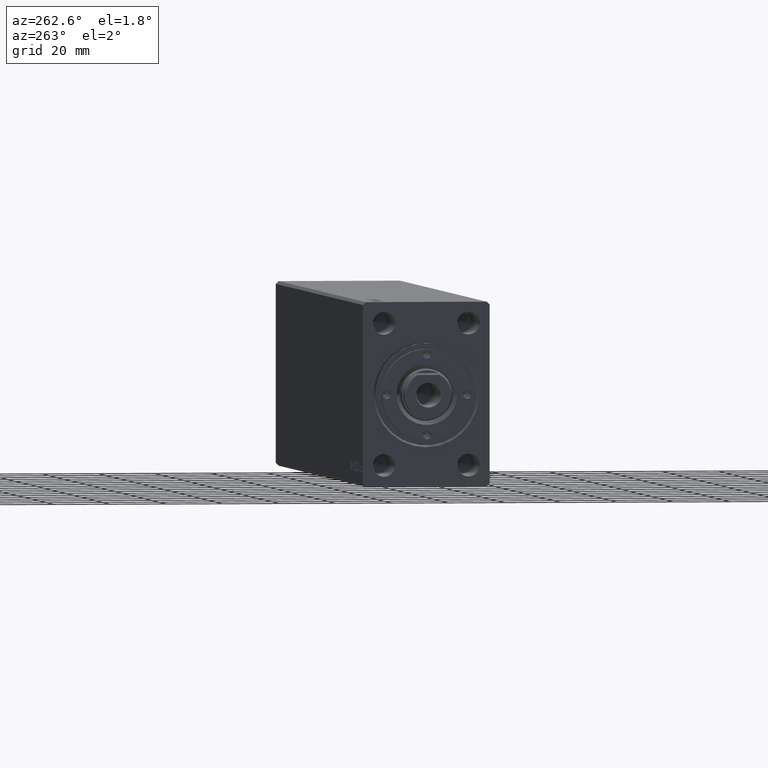
[diagram: clean part render]
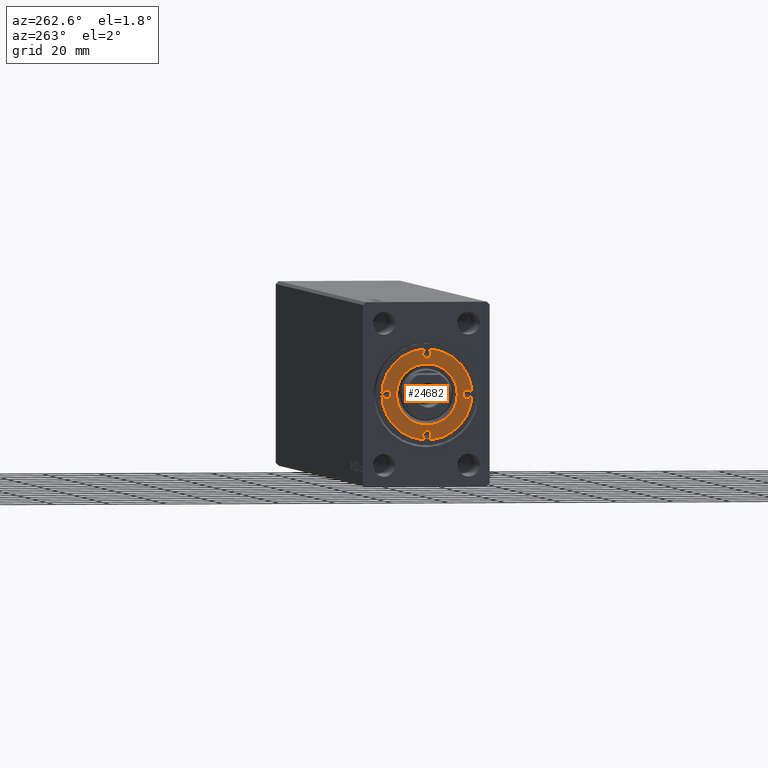
[diagram: same view with one face highlighted and labeled with its STEP entity id]
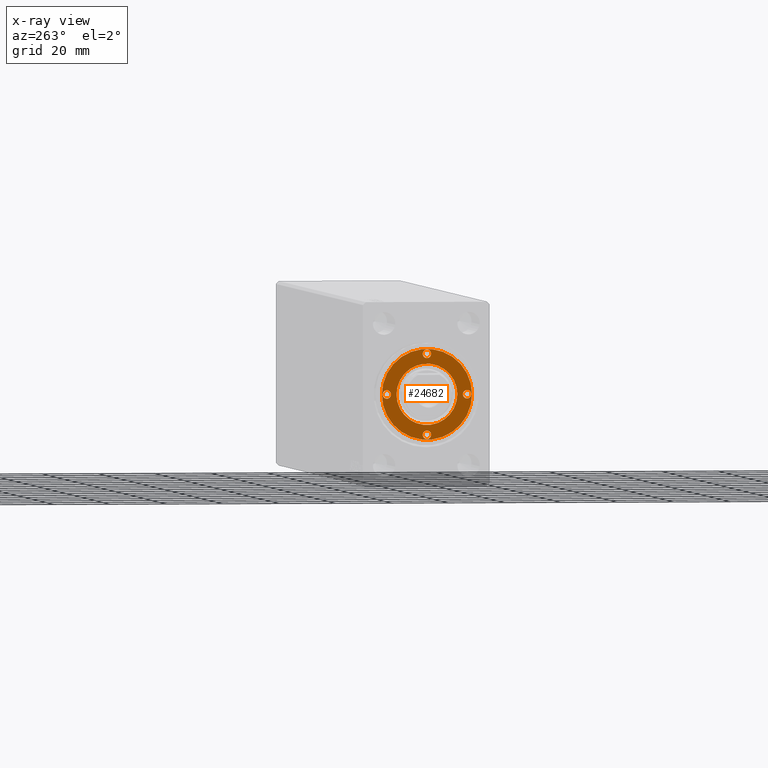
[diagram: x-ray of the same camera — body ghosted, the highlighted face saturated]
A machine part, auxiliary view. The second image highlights one B-rep face of the part: STEP entity #24682.
The next image is the same camera in x-ray: the body ghosted, the highlighted face saturated — about 0% of this face is hidden behind the body in this view.
In plain terms, the highlighted planar face has unit normal (-1, 0, 0).
Its self-contained STEP definition (entity closure, byte-faithful):
#11 = CARTESIAN_POINT ( 'NONE',  ( 0.000000000000000000, 0.000000000000000000, 6.999999999999999112 ) ) ;
#176 = CARTESIAN_POINT ( 'NONE',  ( 1.499999999999996891, 14.25000000000000000, 6.999999999999999112 ) ) ;
#625 = VERTEX_POINT ( 'NONE', #16929 ) ;
#970 = FACE_OUTER_BOUND ( 'NONE', #3366, .T. ) ;
#1006 = CIRCLE ( 'NONE', #25926, 1.499999999999996891 ) ;
#1419 = EDGE_CURVE ( 'NONE', #42107, #10868, #14069, .T. ) ;
#2181 = DIRECTION ( 'NONE',  ( 1.000000000000000000, 0.000000000000000000, 0.000000000000000000 ) ) ;
#2452 = CARTESIAN_POINT ( 'NONE',  ( 0.000000000000000000, 0.000000000000000000, 6.999999999999999112 ) ) ;
#2541 = DIRECTION ( 'NONE',  ( 1.000000000000000000, 0.000000000000000000, 0.000000000000000000 ) ) ;
#2683 = DIRECTION ( 'NONE',  ( 1.000000000000000000, 0.000000000000000000, 0.000000000000000000 ) ) ;
#3366 = EDGE_LOOP ( 'NONE', ( #33672, #27977 ) ) ;
#3828 = DIRECTION ( 'NONE',  ( -0.000000000000000000, -0.000000000000000000, 1.000000000000000000 ) ) ;
#3881 = FACE_BOUND ( 'NONE', #5587, .T. ) ;
#4328 = ORIENTED_EDGE ( 'NONE', *, *, #20865, .F. ) ;
#5408 = DIRECTION ( 'NONE',  ( -0.000000000000000000, -0.000000000000000000, -1.000000000000000000 ) ) ;
#5499 = EDGE_LOOP ( 'NONE', ( #12240, #13201 ) ) ;
#5548 = CIRCLE ( 'NONE', #30478, 1.499999999999996225 ) ;
#5578 = EDGE_CURVE ( 'NONE', #21391, #22571, #40445, .T. ) ;
#5587 = EDGE_LOOP ( 'NONE', ( #31191, #10214 ) ) ;
#5781 = VERTEX_POINT ( 'NONE', #41196 ) ;
#6196 = EDGE_CURVE ( 'NONE', #23084, #34261, #5548, .T. ) ;
#6255 = DIRECTION ( 'NONE',  ( 1.000000000000000000, 0.000000000000000000, 0.000000000000000000 ) ) ;
#6502 = CIRCLE ( 'NONE', #12156, 1.499999999999996891 ) ;
#9080 = VERTEX_POINT ( 'NONE', #176 ) ;
#9116 = CARTESIAN_POINT ( 'NONE',  ( 12.75000000000000355, 1.836970198721025004E-16, 6.999999999999999112 ) ) ;
#10044 = VERTEX_POINT ( 'NONE', #24268 ) ;
#10214 = ORIENTED_EDGE ( 'NONE', *, *, #15070, .F. ) ;
#10498 = CARTESIAN_POINT ( 'NONE',  ( 14.25000000000000000, 0.000000000000000000, 6.999999999999999112 ) ) ;
#10868 = VERTEX_POINT ( 'NONE', #31646 ) ;
#11009 = CARTESIAN_POINT ( 'NONE',  ( 16.00000000000000000, 1.959434878635765131E-15, 6.999999999999999112 ) ) ;
#11975 = AXIS2_PLACEMENT_3D ( 'NONE', #21442, #35063, #18321 ) ;
#12156 = AXIS2_PLACEMENT_3D ( 'NONE', #33246, #40384, #2683 ) ;
#12240 = ORIENTED_EDGE ( 'NONE', *, *, #41867, .T. ) ;
#12704 = DIRECTION ( 'NONE',  ( -0.000000000000000000, -0.000000000000000000, 1.000000000000000000 ) ) ;
#12854 = CARTESIAN_POINT ( 'NONE',  ( -16.00000000000000000, 0.000000000000000000, 6.999999999999999112 ) ) ;
#13035 = ORIENTED_EDGE ( 'NONE', *, *, #5578, .F. ) ;
#13201 = ORIENTED_EDGE ( 'NONE', *, *, #41483, .T. ) ;
#13621 = DIRECTION ( 'NONE',  ( 1.000000000000000000, 0.000000000000000000, 0.000000000000000000 ) ) ;
#14069 = CIRCLE ( 'NONE', #41866, 1.499999999999996225 ) ;
#14945 = ORIENTED_EDGE ( 'NONE', *, *, #6196, .F. ) ;
#15070 = EDGE_CURVE ( 'NONE', #5781, #9080, #22164, .T. ) ;
#15182 = EDGE_CURVE ( 'NONE', #9080, #5781, #6502, .T. ) ;
#15346 = DIRECTION ( 'NONE',  ( -0.000000000000000000, -0.000000000000000000, 1.000000000000000000 ) ) ;
#15613 = CARTESIAN_POINT ( 'NONE',  ( -12.75000000000000355, 0.000000000000000000, 6.999999999999999112 ) ) ;
#16929 = CARTESIAN_POINT ( 'NONE',  ( 10.79999999999997584, 0.000000000000000000, 6.999999999999999112 ) ) ;
#17501 = AXIS2_PLACEMENT_3D ( 'NONE', #36433, #19472, #33083 ) ;
#17812 = CARTESIAN_POINT ( 'NONE',  ( 0.000000000000000000, -14.25000000000000000, 6.999999999999999112 ) ) ;
#18321 = DIRECTION ( 'NONE',  ( 1.000000000000000000, 0.000000000000000000, 0.000000000000000000 ) ) ;
#18827 = VERTEX_POINT ( 'NONE', #11009 ) ;
#19252 = CIRCLE ( 'NONE', #34928, 10.79999999999997584 ) ;
#19472 = DIRECTION ( 'NONE',  ( -0.000000000000000000, -0.000000000000000000, 1.000000000000000000 ) ) ;
#19633 = CARTESIAN_POINT ( 'NONE',  ( 0.000000000000000000, 14.25000000000000000, 6.999999999999999112 ) ) ;
#20084 = PLANE ( 'NONE',  #23820 ) ;
#20865 = EDGE_CURVE ( 'NONE', #22571, #21391, #1006, .T. ) ;
#21259 = FACE_BOUND ( 'NONE', #32080, .T. ) ;
#21382 = CIRCLE ( 'NONE', #42070, 10.79999999999997584 ) ;
#21391 = VERTEX_POINT ( 'NONE', #40196 ) ;
#21442 = CARTESIAN_POINT ( 'NONE',  ( -14.25000000000000000, 0.000000000000000000, 6.999999999999999112 ) ) ;
#21862 = AXIS2_PLACEMENT_3D ( 'NONE', #2452, #43284, #42638 ) ;
#21929 = VERTEX_POINT ( 'NONE', #12854 ) ;
#22164 = CIRCLE ( 'NONE', #30706, 1.499999999999996891 ) ;
#22571 = VERTEX_POINT ( 'NONE', #43420 ) ;
#22782 = DIRECTION ( 'NONE',  ( 1.000000000000000000, 0.000000000000000000, 0.000000000000000000 ) ) ;
#22831 = DIRECTION ( 'NONE',  ( -0.000000000000000000, -0.000000000000000000, -1.000000000000000000 ) ) ;
#23084 = VERTEX_POINT ( 'NONE', #9116 ) ;
#23820 = AXIS2_PLACEMENT_3D ( 'NONE', #11, #37259, #30575 ) ;
#24268 = CARTESIAN_POINT ( 'NONE',  ( -10.79999999999997584, 1.322618543079138535E-15, 6.999999999999999112 ) ) ;
#24386 = FACE_BOUND ( 'NONE', #30092, .T. ) ;
#24682 = ADVANCED_FACE ( 'NONE', ( #21259, #3881, #31542, #24386, #38007, #970 ), #20084, .T. ) ;
#24726 = CIRCLE ( 'NONE', #21862, 16.00000000000000000 ) ;
#25429 = AXIS2_PLACEMENT_3D ( 'NONE', #34613, #31936, #31714 ) ;
#25926 = AXIS2_PLACEMENT_3D ( 'NONE', #17812, #37668, #41902 ) ;
#26781 = ORIENTED_EDGE ( 'NONE', *, *, #36233, .F. ) ;
#27672 = EDGE_LOOP ( 'NONE', ( #30839, #14945 ) ) ;
#27977 = ORIENTED_EDGE ( 'NONE', *, *, #33339, .T. ) ;
#28359 = CIRCLE ( 'NONE', #11975, 1.499999999999996225 ) ;
#29194 = EDGE_CURVE ( 'NONE', #34261, #23084, #41743, .T. ) ;
#29615 = CARTESIAN_POINT ( 'NONE',  ( 0.000000000000000000, -14.25000000000000000, 6.999999999999999112 ) ) ;
#29633 = CARTESIAN_POINT ( 'NONE',  ( -14.25000000000000000, 0.000000000000000000, 6.999999999999999112 ) ) ;
#29856 = DIRECTION ( 'NONE',  ( 1.000000000000000000, 0.000000000000000000, 0.000000000000000000 ) ) ;
#30092 = EDGE_LOOP ( 'NONE', ( #13035, #4328 ) ) ;
#30216 = ORIENTED_EDGE ( 'NONE', *, *, #1419, .F. ) ;
#30478 = AXIS2_PLACEMENT_3D ( 'NONE', #10498, #3828, #13621 ) ;
#30575 = DIRECTION ( 'NONE',  ( 1.000000000000000000, 0.000000000000000000, -0.000000000000000000 ) ) ;
#30706 = AXIS2_PLACEMENT_3D ( 'NONE', #19633, #12704, #6255 ) ;
#30839 = ORIENTED_EDGE ( 'NONE', *, *, #29194, .F. ) ;
#31191 = ORIENTED_EDGE ( 'NONE', *, *, #15182, .F. ) ;
#31542 = FACE_BOUND ( 'NONE', #27672, .T. ) ;
#31646 = CARTESIAN_POINT ( 'NONE',  ( -15.74999999999999645, 1.836970198721025004E-16, 6.999999999999999112 ) ) ;
#31714 = DIRECTION ( 'NONE',  ( 1.000000000000000000, 0.000000000000000000, 0.000000000000000000 ) ) ;
#31936 = DIRECTION ( 'NONE',  ( 0.000000000000000000, 0.000000000000000000, 1.000000000000000000 ) ) ;
#32080 = EDGE_LOOP ( 'NONE', ( #30216, #26781 ) ) ;
#32852 = CARTESIAN_POINT ( 'NONE',  ( 0.000000000000000000, 0.000000000000000000, 6.999999999999999112 ) ) ;
#33083 = DIRECTION ( 'NONE',  ( 1.000000000000000000, 0.000000000000000000, 0.000000000000000000 ) ) ;
#33105 = EDGE_CURVE ( 'NONE', #21929, #18827, #38273, .T. ) ;
#33246 = CARTESIAN_POINT ( 'NONE',  ( 0.000000000000000000, 14.25000000000000000, 6.999999999999999112 ) ) ;
#33339 = EDGE_CURVE ( 'NONE', #18827, #21929, #24726, .T. ) ;
#33672 = ORIENTED_EDGE ( 'NONE', *, *, #33105, .T. ) ;
#34261 = VERTEX_POINT ( 'NONE', #38941 ) ;
#34613 = CARTESIAN_POINT ( 'NONE',  ( 0.000000000000000000, 0.000000000000000000, 6.999999999999999112 ) ) ;
#34928 = AXIS2_PLACEMENT_3D ( 'NONE', #42726, #22831, #2541 ) ;
#35063 = DIRECTION ( 'NONE',  ( -0.000000000000000000, -0.000000000000000000, 1.000000000000000000 ) ) ;
#36233 = EDGE_CURVE ( 'NONE', #10868, #42107, #28359, .T. ) ;
#36433 = CARTESIAN_POINT ( 'NONE',  ( 14.25000000000000000, 0.000000000000000000, 6.999999999999999112 ) ) ;
#37259 = DIRECTION ( 'NONE',  ( 0.000000000000000000, 0.000000000000000000, 1.000000000000000000 ) ) ;
#37609 = AXIS2_PLACEMENT_3D ( 'NONE', #29615, #15346, #2181 ) ;
#37668 = DIRECTION ( 'NONE',  ( -0.000000000000000000, -0.000000000000000000, 1.000000000000000000 ) ) ;
#38007 = FACE_BOUND ( 'NONE', #5499, .T. ) ;
#38273 = CIRCLE ( 'NONE', #25429, 16.00000000000000000 ) ;
#38941 = CARTESIAN_POINT ( 'NONE',  ( 15.74999999999999645, 0.000000000000000000, 6.999999999999999112 ) ) ;
#40196 = CARTESIAN_POINT ( 'NONE',  ( 1.499999999999996891, -14.25000000000000000, 6.999999999999999112 ) ) ;
#40384 = DIRECTION ( 'NONE',  ( -0.000000000000000000, -0.000000000000000000, 1.000000000000000000 ) ) ;
#40445 = CIRCLE ( 'NONE', #37609, 1.499999999999996891 ) ;
#41196 = CARTESIAN_POINT ( 'NONE',  ( -1.499999999999996891, 14.25000000000000000, 6.999999999999999112 ) ) ;
#41483 = EDGE_CURVE ( 'NONE', #10044, #625, #19252, .T. ) ;
#41743 = CIRCLE ( 'NONE', #17501, 1.499999999999996225 ) ;
#41866 = AXIS2_PLACEMENT_3D ( 'NONE', #29633, #43246, #29856 ) ;
#41867 = EDGE_CURVE ( 'NONE', #625, #10044, #21382, .T. ) ;
#41902 = DIRECTION ( 'NONE',  ( 1.000000000000000000, 0.000000000000000000, 0.000000000000000000 ) ) ;
#42070 = AXIS2_PLACEMENT_3D ( 'NONE', #32852, #5408, #22782 ) ;
#42107 = VERTEX_POINT ( 'NONE', #15613 ) ;
#42638 = DIRECTION ( 'NONE',  ( 1.000000000000000000, 0.000000000000000000, 0.000000000000000000 ) ) ;
#42726 = CARTESIAN_POINT ( 'NONE',  ( 0.000000000000000000, 0.000000000000000000, 6.999999999999999112 ) ) ;
#43246 = DIRECTION ( 'NONE',  ( -0.000000000000000000, -0.000000000000000000, 1.000000000000000000 ) ) ;
#43284 = DIRECTION ( 'NONE',  ( 0.000000000000000000, 0.000000000000000000, 1.000000000000000000 ) ) ;
#43420 = CARTESIAN_POINT ( 'NONE',  ( -1.499999999999996891, -14.25000000000000000, 6.999999999999999112 ) ) ;